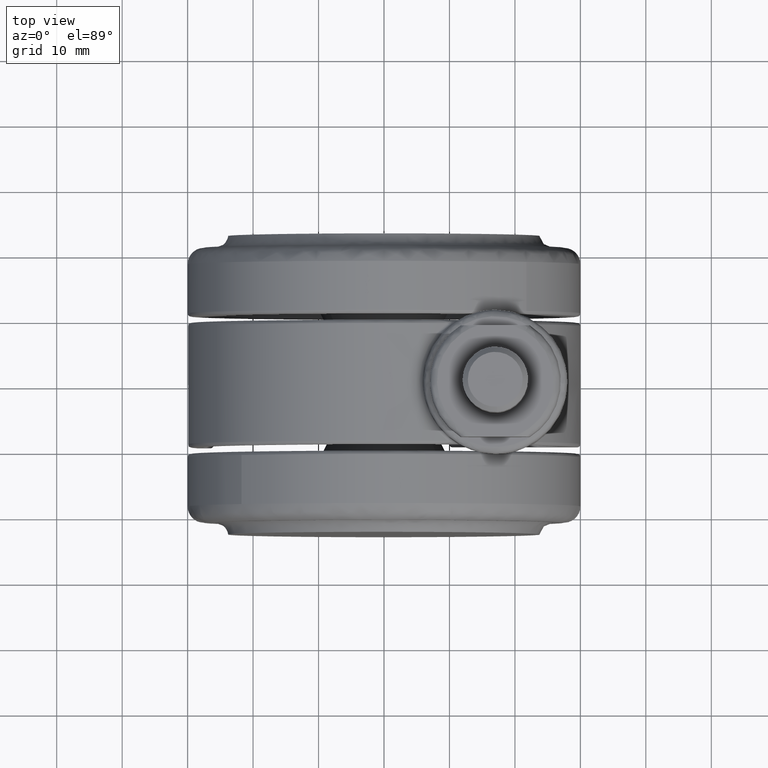
[diagram: clean part render]
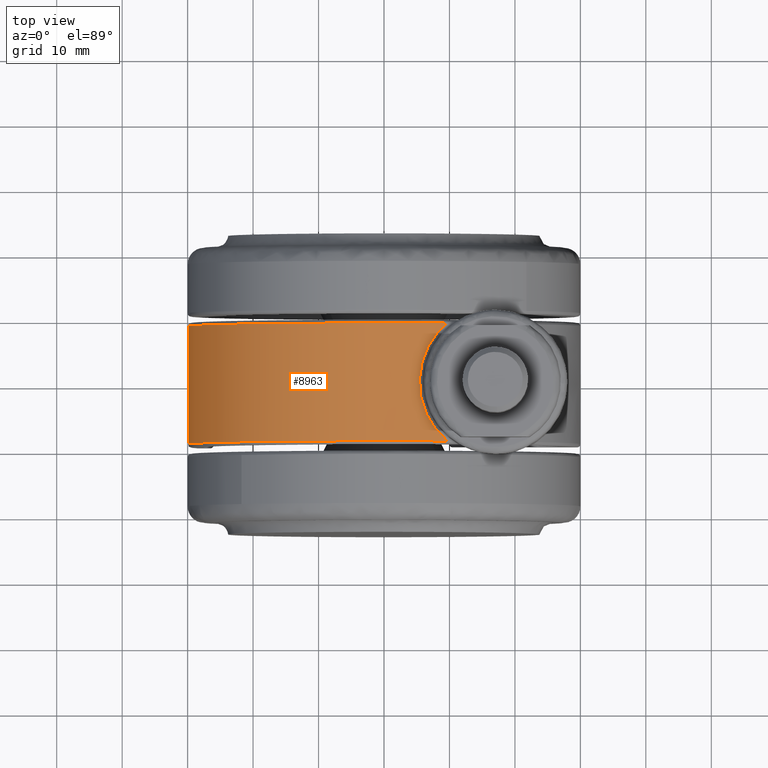
[diagram: same view with one face highlighted and labeled with its STEP entity id]
A machine part, top view. The second image highlights one B-rep face of the part: STEP entity #8963.
In plain terms, the highlighted face is a freeform B-spline surface patch.
Its self-contained STEP definition (entity closure, byte-faithful):
#7091=CARTESIAN_POINT('',(9.679760132814890,-8.999999999999901,28.395461675612300));
#7092=VERTEX_POINT('',#7091);
#7391=CARTESIAN_POINT('',(9.679760132821608,8.999999999999901,28.395461675610001));
#7392=VERTEX_POINT('',#7391);
#7403=CARTESIAN_POINT('',(9.679760132814890,-8.999999999999901,28.395461675612300));
#7404=CARTESIAN_POINT('',(9.515692284197385,-8.867319685163537,28.451390944812680));
#7405=CARTESIAN_POINT('',(9.355040690380402,-8.729835605686404,28.504569345912220));
#7406=CARTESIAN_POINT('',(9.119309360533942,-8.516372930291842,28.580500551346649));
#7407=CARTESIAN_POINT('',(9.041606994688907,-8.444012054762677,28.605171246788860));
#7408=CARTESIAN_POINT('',(8.887977069031768,-8.296864969235305,28.653278045014130));
#7409=CARTESIAN_POINT('',(8.811966233629665,-8.221992596841751,28.676739220744921));
#7410=CARTESIAN_POINT('',(8.437732384494590,-7.842871611166936,28.790668835639860));
#7411=CARTESIAN_POINT('',(8.156703299449740,-7.524267688183654,28.871134240749701));
#7412=CARTESIAN_POINT('',(7.631104329684816,-6.857358248104255,29.014486860396300));
#7413=CARTESIAN_POINT('',(7.386532931489469,-6.509052354127157,29.077366441542971));
#7414=CARTESIAN_POINT('',(7.047701276063930,-5.964238906905061,29.160648718852329));
#7415=CARTESIAN_POINT('',(6.939437479261165,-5.778900819081246,29.186563675338139));
#7416=CARTESIAN_POINT('',(6.784237076795033,-5.495208536533708,29.222884015983521));
#7417=CARTESIAN_POINT('',(6.733703487599769,-5.399696371115655,29.234565095825829));
#7418=CARTESIAN_POINT('',(6.635073718869624,-5.206754863813950,29.257107781634140));
#7419=CARTESIAN_POINT('',(6.586971470226844,-5.109298478076849,29.267970266631330));
#7420=CARTESIAN_POINT('',(6.354137421952721,-4.620397619648537,29.319982340903291));
#7421=CARTESIAN_POINT('',(6.191052817716809,-4.221613584407463,29.354581324243931));
#7422=CARTESIAN_POINT('',(5.910036111822172,-3.409269250540057,29.412447243817841));
#7423=CARTESIAN_POINT('',(5.792105777972266,-2.995707994917593,29.435707858009032));
#7424=CARTESIAN_POINT('',(5.649424685402777,-2.364252627736232,29.463305098635502));
#7425=CARTESIAN_POINT('',(5.607579537469120,-2.151910775270974,29.471280859357659));
#7426=CARTESIAN_POINT('',(5.535540326524944,-1.723452114622898,29.484896761793141));
#7427=CARTESIAN_POINT('',(5.505339133137142,-1.507085699287827,29.490538148841740));
#7428=CARTESIAN_POINT('',(5.457202924288215,-1.073699518292509,29.499483648401061));
#7429=CARTESIAN_POINT('',(5.439180108966831,-0.855914387207717,29.502804370791662));
#7430=CARTESIAN_POINT('',(5.415412848216340,-0.421532355047654,29.507176240405609));
#7431=CARTESIAN_POINT('',(5.409634898567102,-0.204903754806835,29.508233601967479));
#7432=CARTESIAN_POINT('',(5.410254417844901,0.443328853837493,29.508120023317360));
#7433=CARTESIAN_POINT('',(5.434549853067673,0.873285141780643,29.503695407711810));
#7434=CARTESIAN_POINT('',(5.530372701074447,1.728843085911464,29.485883954932110));
#7435=CARTESIAN_POINT('',(5.601897987125389,2.154444980086015,29.472499995626631));
#7436=CARTESIAN_POINT('',(5.745567645175787,2.789479782748532,29.444708042317380));
#7437=CARTESIAN_POINT('',(5.799717335032823,3.001132918445607,29.434112465359870));
#7438=CARTESIAN_POINT('',(5.918994007917236,3.418339702489259,29.410358850649441));
#7439=CARTESIAN_POINT('',(5.984196424040433,3.624369236413187,29.397186890839130));
#7440=CARTESIAN_POINT('',(6.196157745264962,4.234857739561716,29.353508222041938));
#7441=CARTESIAN_POINT('',(6.359223491401019,4.631740265319775,29.318868118098269));
#7442=CARTESIAN_POINT('',(6.728277165983746,5.405334558610759,29.236382086669469));
#7443=CARTESIAN_POINT('',(6.934264530279605,5.782047277191983,29.188543319607660));
#7444=CARTESIAN_POINT('',(7.219160358963483,6.239878815872304,29.118502134684139));
#7445=CARTESIAN_POINT('',(7.277607589727006,6.330929888180587,29.103955142816488));
#7446=CARTESIAN_POINT('',(7.396792296615391,6.510970942158261,29.073892771795428));
#7447=CARTESIAN_POINT('',(7.578835113444661,6.777712733506305,29.027390976263220));
#7448=CARTESIAN_POINT('',(7.770491955607930,7.034619387531556,28.976510392751461));
#7449=CARTESIAN_POINT('',(8.166244797312134,7.535538028739012,28.868447221906081));
#7450=CARTESIAN_POINT('',(8.446634744420129,7.852324465771454,28.788024111188900));
#7451=CARTESIAN_POINT('',(9.039322360725198,8.451874865041646,28.607457454148779));
#7452=CARTESIAN_POINT('',(9.351622860350940,8.734638096452944,28.507320750994669));
#7453=CARTESIAN_POINT('',(9.679760132821608,9.000000000005331,28.395461675610001));
#7454=B_SPLINE_CURVE_WITH_KNOTS('',3,(#7403,#7404,#7405,#7406,#7407,#7408,#7409,#7410,#7411,#7412,#7413,#7414,#7415,#7416,#7417,#7418,#7419,#7420,#7421,#7422,#7423,#7424,#7425,#7426,#7427,#7428,#7429,#7430,#7431,#7432,#7433,#7434,#7435,#7436,#7437,#7438,#7439,#7440,#7441,#7442,#7443,#7444,#7445,#7446,#7447,#7448,#7449,#7450,#7451,#7452,#7453),.UNSPECIFIED.,.F.,.U.,(4,2,2,2,2,2,2,2,2,2,2,2,2,2,2,2,2,2,2,2,2,2,1,2,2,4),(0.0,0.031250000000001,0.046875000000001,0.062500000000001,0.125000000000001,0.187500000000002,0.218750000000002,0.234375000000002,0.250000000000002,0.312500000000002,0.375000000000002,0.406250000000002,0.437500000000002,0.468750000000001,0.500000000000001,0.562500000000001,0.625000000000001,0.656250000000001,0.687500000000001,0.750000000000000,0.812500000000000,0.828125000000000,0.843750000000000,0.875000000000000,0.937500000000000,1.0),.UNSPECIFIED.);
#7455=EDGE_CURVE('',#7092,#7392,#7454,.T.);
#7662=CARTESIAN_POINT('',(-28.875805148137001,8.999999999999901,-8.135593220338990));
#7663=VERTEX_POINT('',#7662);
#7664=CARTESIAN_POINT('',(9.679760132821608,8.999999999999901,28.395461675610001));
#7665=CARTESIAN_POINT('',(8.393721896695062,8.999999999999893,28.833904162752571));
#7666=CARTESIAN_POINT('',(5.720836069062556,8.999999999999897,29.546628899269081));
#7667=CARTESIAN_POINT('',(2.045536270016902,8.999999999999950,29.999509612421669));
#7668=CARTESIAN_POINT('',(-1.439944750048638,8.999999999999830,30.019828788458710));
#7669=CARTESIAN_POINT('',(-4.529683970035075,8.999999999999886,29.715490131713761));
#7670=CARTESIAN_POINT('',(-7.567388398470237,8.999999999999956,29.079237378124390));
#7671=CARTESIAN_POINT('',(-10.649653125610850,8.999999999999874,28.111876461992310));
#7672=CARTESIAN_POINT('',(-13.843010961102820,9.000000000000041,26.706804270521840));
#7673=CARTESIAN_POINT('',(-17.050671056732341,8.999999999999922,24.775723557020729));
#7674=CARTESIAN_POINT('',(-19.962637315800400,8.999999999999698,22.492185821830411));
#7675=CARTESIAN_POINT('',(-22.427648655975659,8.999999999999941,20.023961456336881));
#7676=CARTESIAN_POINT('',(-24.698747290729440,8.999999999999854,17.158010664743831));
#7677=CARTESIAN_POINT('',(-26.875652799183360,8.999999999999542,13.600486441339729));
#7678=CARTESIAN_POINT('',(-28.659589959448429,9.000000000000375,9.310941049550362));
#7679=CARTESIAN_POINT('',(-29.788849012898570,8.999999999999446,4.501948511557057));
#7680=CARTESIAN_POINT('',(-30.089846929356199,9.000000000000084,0.294716740692963));
#7681=CARTESIAN_POINT('',(-29.822292659216089,8.999999999999885,-3.990996343465847));
#7682=CARTESIAN_POINT('',(-29.313482228087789,8.999999999999893,-6.582608566040543));
#7683=CARTESIAN_POINT('',(-28.875805148137001,8.999999999999901,-8.135593220338990));
#7684=B_SPLINE_CURVE_WITH_KNOTS('',3,(#7664,#7665,#7666,#7667,#7668,#7669,#7670,#7671,#7672,#7673,#7674,#7675,#7676,#7677,#7678,#7679,#7680,#7681,#7682,#7683),.UNSPECIFIED.,.F.,.U.,(4,1,1,1,1,1,1,1,1,1,1,1,1,1,1,1,1,4),(0.000000068115227,4.076167286481486,8.279708940671640,11.082091759946920,14.521376548976191,17.578510729331441,20.380881827408661,24.202316462055190,28.023738188432169,31.590367091754420,35.284389713124533,38.468905601022371,42.545080656634163,47.767685441321817,52.353385522778240,57.321231832975357,60.378391165771433,65.218813819083323),.UNSPECIFIED.);
#7685=EDGE_CURVE('',#7392,#7663,#7684,.T.);
#7780=CARTESIAN_POINT('',(-28.875805148137001,-8.999999999999901,-8.135593220338990));
#7781=VERTEX_POINT('',#7780);
#7782=CARTESIAN_POINT('',(-28.875805148137001,-8.999999999999901,-8.135593220338990));
#7783=CARTESIAN_POINT('',(-29.313468413906101,-8.999999999999911,-6.582606549260356));
#7784=CARTESIAN_POINT('',(-29.912641132297772,-8.999999999999927,-3.531195854937019));
#7785=CARTESIAN_POINT('',(-30.080236630797192,-8.999999999999817,0.765857760257542));
#7786=CARTESIAN_POINT('',(-29.737980742871819,-9.000000000000085,4.365130442419651));
#7787=CARTESIAN_POINT('',(-29.000009772818039,-8.999999999999776,7.988827922563409));
#7788=CARTESIAN_POINT('',(-27.962803613329982,-8.999999999999957,11.055075502792130));
#7789=CARTESIAN_POINT('',(-26.584889847844789,-8.999999999999901,13.975406826485200));
#7790=CARTESIAN_POINT('',(-24.884697418331768,-9.000000000000050,16.920396714548119));
#7791=CARTESIAN_POINT('',(-22.488728220186822,-8.999999999999439,20.024358666808070));
#7792=CARTESIAN_POINT('',(-19.787568695752729,-9.000000000000199,22.616314048948119));
#7793=CARTESIAN_POINT('',(-17.212990139245520,-8.999999999999020,24.635308381578820));
#7794=CARTESIAN_POINT('',(-14.658657510267920,-9.000000000001769,26.247908166434261));
#7795=CARTESIAN_POINT('',(-11.712045351044891,-8.999999999998154,27.673455604393780));
#7796=CARTESIAN_POINT('',(-8.597849678703236,-8.999999999998574,28.813179881367159));
#7797=CARTESIAN_POINT('',(-5.452064285877047,-9.000000000000297,29.563221843188540));
#7798=CARTESIAN_POINT('',(-2.077822213099605,-8.999999999999265,29.982614982115020));
#7799=CARTESIAN_POINT('',(1.069182915591294,-9.000000000000181,30.044423170957849));
#7800=CARTESIAN_POINT('',(5.133515015886458,-8.999999999999773,29.665843915602370));
#7801=CARTESIAN_POINT('',(7.951686632444075,-8.999999999999945,28.984764481443310));
#7802=CARTESIAN_POINT('',(9.679760132814890,-8.999999999999901,28.395461675612300));
#7803=B_SPLINE_CURVE_WITH_KNOTS('',3,(#7782,#7783,#7784,#7785,#7786,#7787,#7788,#7789,#7790,#7791,#7792,#7793,#7794,#7795,#7796,#7797,#7798,#7799,#7800,#7801,#7802),.UNSPECIFIED.,.F.,.U.,(4,1,1,1,1,1,1,1,1,1,1,1,1,1,1,1,1,1,4),(0.000000068090316,4.840421592249307,9.298773679908869,12.865419867593310,15.667800191291059,20.380881827393210,22.546349540601771,25.348728137918680,30.571320709065532,34.265344757559518,36.558198767118732,40.379610683544982,43.309350322401173,46.366492403420850,50.315300568525593,52.990288997836231,56.556965465946142,59.741487020984842,65.218813819076260),.UNSPECIFIED.);
#7804=EDGE_CURVE('',#7781,#7092,#7803,.T.);
#8939=CARTESIAN_POINT('',(-28.803710102919730,9.449999999999898,-8.387269180547323));
#8940=CARTESIAN_POINT('',(-28.803710102919730,-9.461249999999900,-8.387269180547323));
#8941=CARTESIAN_POINT('',(-46.000160324155537,9.449999999999896,50.669088295205349));
#8942=CARTESIAN_POINT('',(-46.000160324155537,-9.461249999999900,50.669088295205349));
#8943=CARTESIAN_POINT('',(11.124076349150590,9.449999999999898,27.861351822520529));
#8944=CARTESIAN_POINT('',(11.124076349150590,-9.461249999999900,27.861351822520529));
#8952=(BOUNDED_SURFACE()B_SPLINE_SURFACE(1,2,((#8939,#8941,#8943),(#8940,#8942,#8944)),.UNSPECIFIED.,.F.,.F.,.U.)B_SPLINE_SURFACE_WITH_KNOTS((2,2),(3,3),(0.0,18.911249999999800),(0.0,74.984322229119257),.UNSPECIFIED.)GEOMETRIC_REPRESENTATION_ITEM()RATIONAL_B_SPLINE_SURFACE(((1.0,0.438371146789078,1.0),(1.0,0.438371146789078,1.0)))REPRESENTATION_ITEM('')SURFACE());
#8953=ORIENTED_EDGE('',*,*,#7804,.T.);
#8954=ORIENTED_EDGE('',*,*,#7455,.T.);
#8955=ORIENTED_EDGE('',*,*,#7685,.T.);
#8956=CARTESIAN_POINT('',(-28.875805148137001,8.999999999999901,-8.135593220338990));
#8957=CARTESIAN_POINT('',(-28.875805148137001,-8.999999999999901,-8.135593220338990));
#8958=QUASI_UNIFORM_CURVE('',1,(#8956,#8957),.UNSPECIFIED.,.F.,.U.);
#8959=EDGE_CURVE('',#7663,#7781,#8958,.T.);
#8960=ORIENTED_EDGE('',*,*,#8959,.T.);
#8961=EDGE_LOOP('',(#8953,#8954,#8955,#8960));
#8962=FACE_OUTER_BOUND('',#8961,.T.);
#8963=ADVANCED_FACE('',(#8962),#8952,.T.);